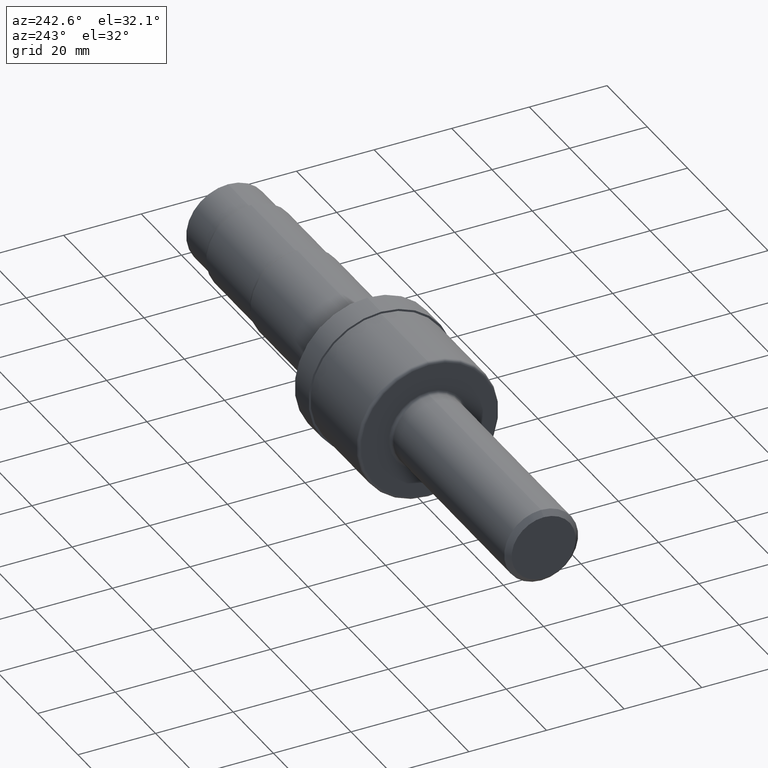
[diagram: clean part render]
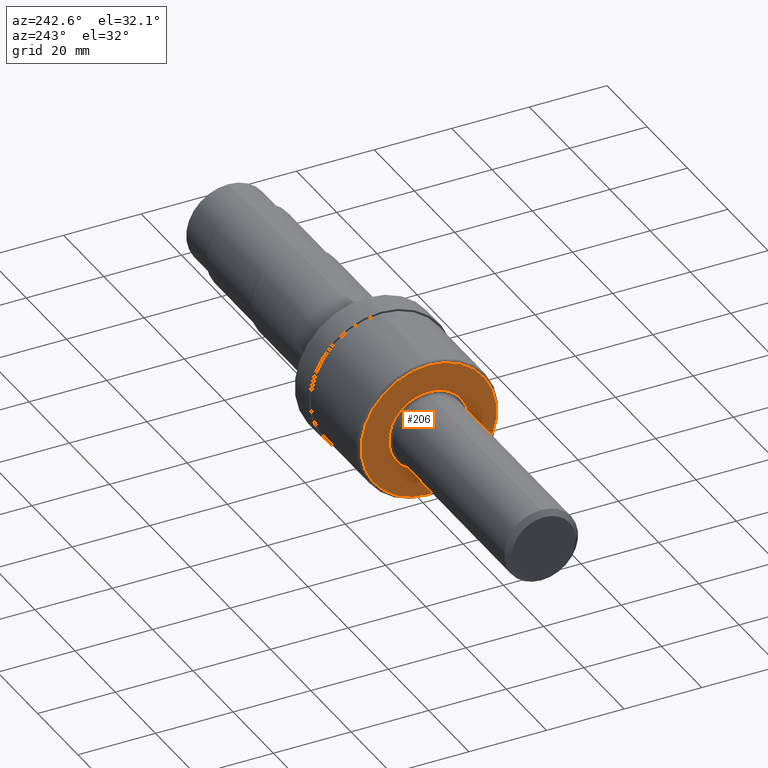
[diagram: same view with one face highlighted and labeled with its STEP entity id]
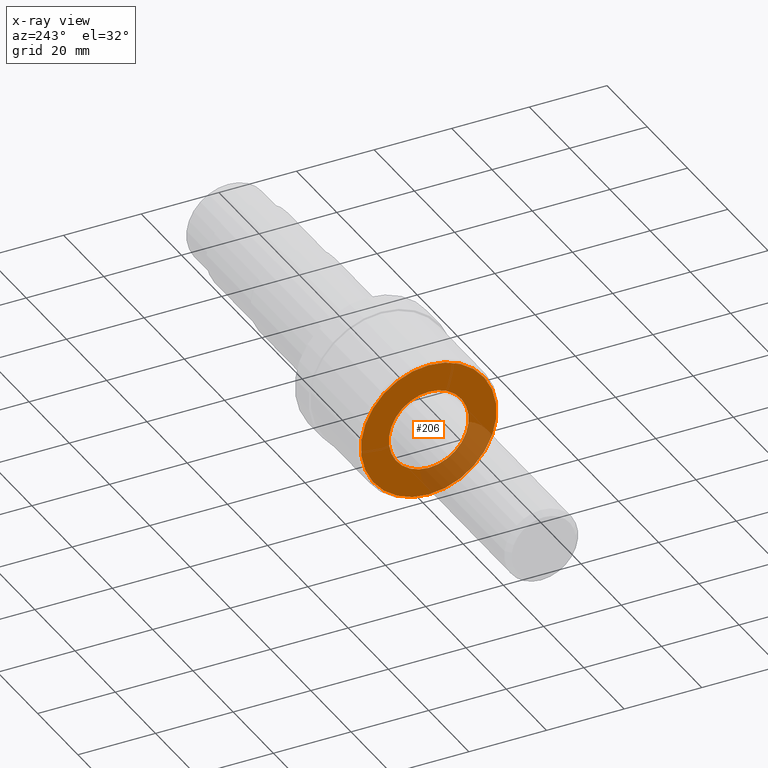
[diagram: x-ray of the same camera — body ghosted, the highlighted face saturated]
A machine part, auxiliary view. The second image highlights one B-rep face of the part: STEP entity #206.
The next image is the same camera in x-ray: the body ghosted, the highlighted face saturated — about 23% of this face is hidden behind the body in this view.
In plain terms, the highlighted planar face has unit normal (1, 0, 0).
Its self-contained STEP definition (entity closure, byte-faithful):
#18 = EDGE_LOOP ( 'NONE', ( #783, #298 ) ) ;
#23 = DIRECTION ( 'NONE',  ( -1.000000000000000000, -0.0000000000000000000, -0.0000000000000000000 ) ) ;
#53 = VERTEX_POINT ( 'NONE', #132 ) ;
#71 = EDGE_CURVE ( 'NONE', #53, #567, #412, .T. ) ;
#132 = CARTESIAN_POINT ( 'NONE',  ( 2.250000000000000000, 8.603143764010157568E-17, -0.6875000000000001110 ) ) ;
#156 = DIRECTION ( 'NONE',  ( -1.000000000000000000, -0.0000000000000000000, -0.0000000000000000000 ) ) ;
#172 = FACE_OUTER_BOUND ( 'NONE', #580, .T. ) ;
#190 = CIRCLE ( 'NONE', #681, 0.6875000000000001110 ) ;
#206 = ADVANCED_FACE ( 'NONE', ( #769, #172 ), #894, .F. ) ;
#233 = ORIENTED_EDGE ( 'NONE', *, *, #318, .T. ) ;
#280 = DIRECTION ( 'NONE',  ( 0.0000000000000000000, 0.0000000000000000000, 1.000000000000000000 ) ) ;
#298 = ORIENTED_EDGE ( 'NONE', *, *, #503, .F. ) ;
#304 = CARTESIAN_POINT ( 'NONE',  ( 2.250000000000000000, 0.0000000000000000000, 0.4048500000000005983 ) ) ;
#306 = VERTEX_POINT ( 'NONE', #304 ) ;
#311 = CIRCLE ( 'NONE', #882, 0.4048500000000005983 ) ;
#318 = EDGE_CURVE ( 'NONE', #567, #53, #190, .T. ) ;
#336 = DIRECTION ( 'NONE',  ( 0.0000000000000000000, 0.0000000000000000000, 1.000000000000000000 ) ) ;
#339 = DIRECTION ( 'NONE',  ( -1.000000000000000000, -0.0000000000000000000, -0.0000000000000000000 ) ) ;
#364 = DIRECTION ( 'NONE',  ( 0.0000000000000000000, 0.0000000000000000000, -1.000000000000000000 ) ) ;
#409 = AXIS2_PLACEMENT_3D ( 'NONE', #631, #339, #336 ) ;
#412 = CIRCLE ( 'NONE', #601, 0.6875000000000001110 ) ;
#463 = DIRECTION ( 'NONE',  ( 0.0000000000000000000, 0.0000000000000000000, 1.000000000000000000 ) ) ;
#503 = EDGE_CURVE ( 'NONE', #722, #306, #765, .T. ) ;
#514 = AXIS2_PLACEMENT_3D ( 'NONE', #685, #721, #364 ) ;
#526 = CARTESIAN_POINT ( 'NONE',  ( 2.250000000000000000, 0.0000000000000000000, 0.0000000000000000000 ) ) ;
#562 = ORIENTED_EDGE ( 'NONE', *, *, #71, .T. ) ;
#567 = VERTEX_POINT ( 'NONE', #651 ) ;
#580 = EDGE_LOOP ( 'NONE', ( #233, #562 ) ) ;
#601 = AXIS2_PLACEMENT_3D ( 'NONE', #526, #156, #865 ) ;
#631 = CARTESIAN_POINT ( 'NONE',  ( 2.250000000000000000, 0.0000000000000000000, 0.0000000000000000000 ) ) ;
#651 = CARTESIAN_POINT ( 'NONE',  ( 2.250000000000000000, 0.0000000000000000000, 0.6875000000000001110 ) ) ;
#681 = AXIS2_PLACEMENT_3D ( 'NONE', #821, #810, #280 ) ;
#685 = CARTESIAN_POINT ( 'NONE',  ( 2.250000000000000000, 0.6875000000000001110, 0.0000000000000000000 ) ) ;
#721 = DIRECTION ( 'NONE',  ( 1.000000000000000000, 0.0000000000000000000, 0.0000000000000000000 ) ) ;
#722 = VERTEX_POINT ( 'NONE', #731 ) ;
#731 = CARTESIAN_POINT ( 'NONE',  ( 2.250000000000000000, 4.957982566348066292E-17, -0.4048500000000005983 ) ) ;
#765 = CIRCLE ( 'NONE', #409, 0.4048500000000005983 ) ;
#769 = FACE_BOUND ( 'NONE', #18, .T. ) ;
#783 = ORIENTED_EDGE ( 'NONE', *, *, #849, .F. ) ;
#810 = DIRECTION ( 'NONE',  ( -1.000000000000000000, -0.0000000000000000000, -0.0000000000000000000 ) ) ;
#821 = CARTESIAN_POINT ( 'NONE',  ( 2.250000000000000000, 0.0000000000000000000, 0.0000000000000000000 ) ) ;
#849 = EDGE_CURVE ( 'NONE', #306, #722, #311, .T. ) ;
#865 = DIRECTION ( 'NONE',  ( 0.0000000000000000000, 0.0000000000000000000, 1.000000000000000000 ) ) ;
#882 = AXIS2_PLACEMENT_3D ( 'NONE', #896, #23, #463 ) ;
#894 = PLANE ( 'NONE',  #514 ) ;
#896 = CARTESIAN_POINT ( 'NONE',  ( 2.250000000000000000, 0.0000000000000000000, 0.0000000000000000000 ) ) ;